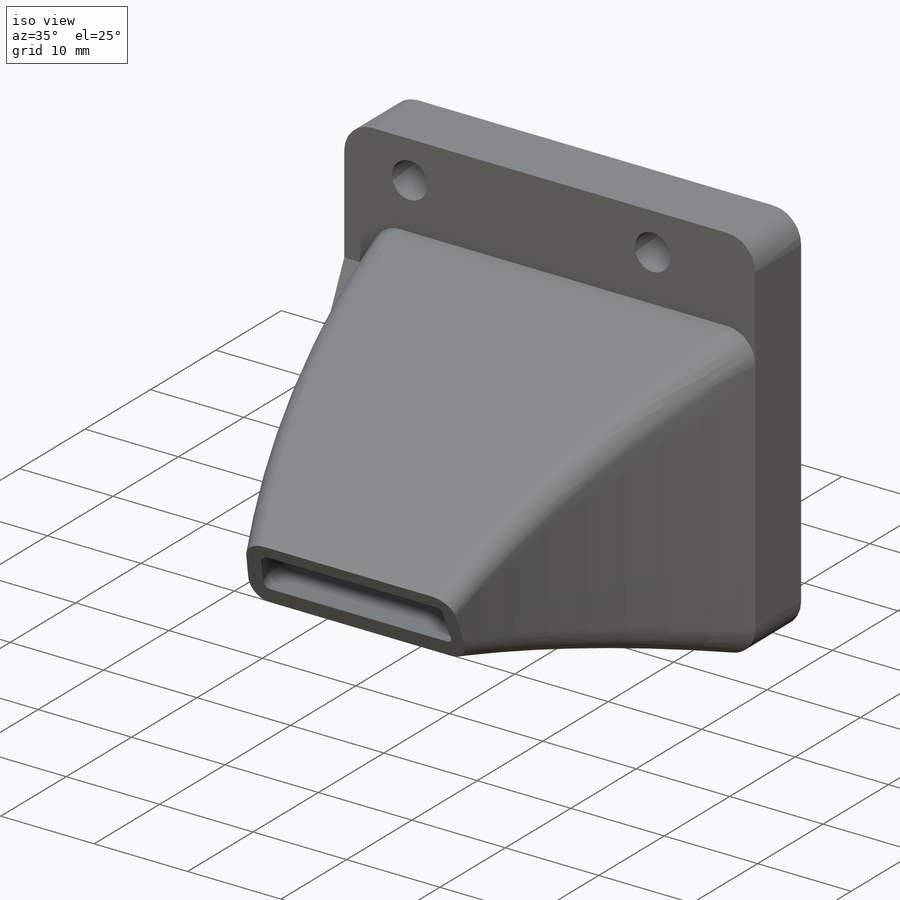
[diagram: iso view]
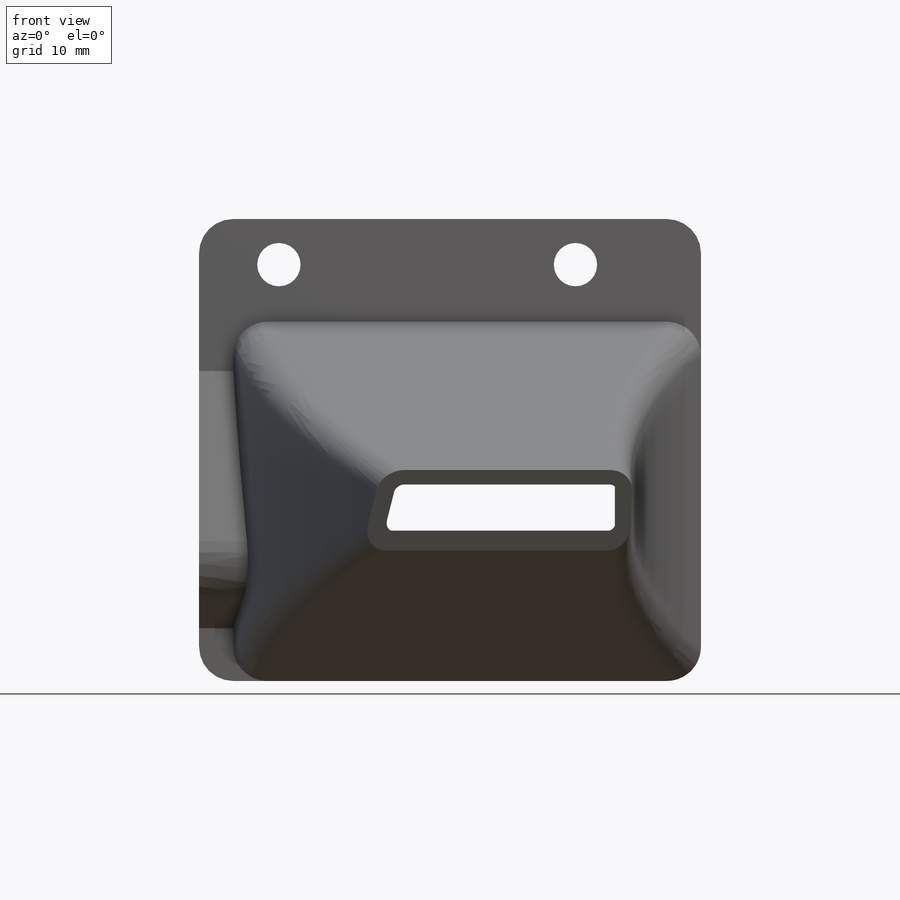
[diagram: front view]
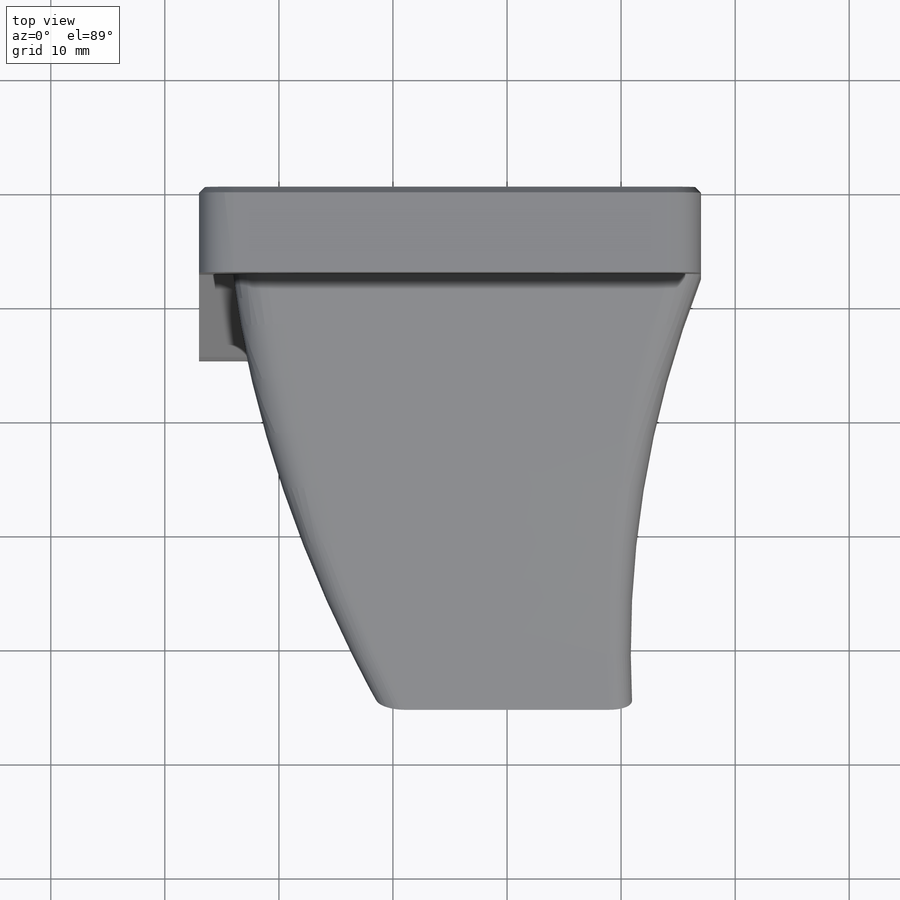
[diagram: top view]
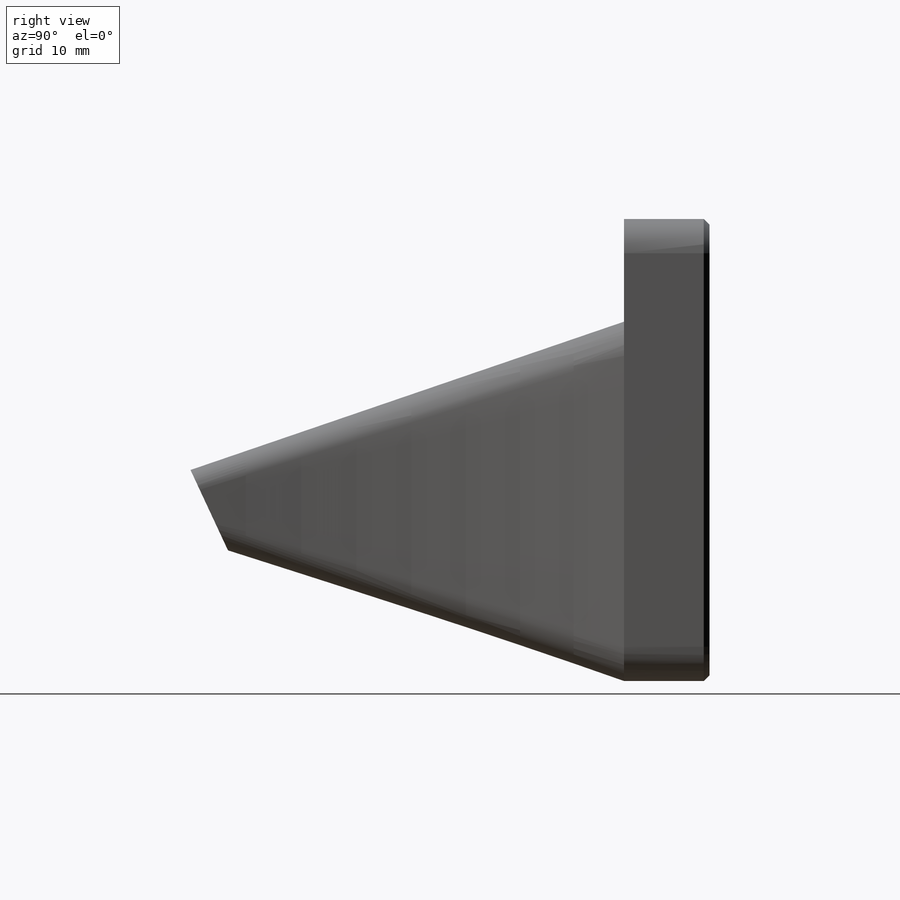
[diagram: right view]
SOLIDWORKS PART (.sldprt)
format: sldprt  version: not decoded by parser v0  size: 491,008 bytes
history: native  units: mm
features: sketch x10, cut_extrude x3, extrude x2, plane x2, material x1, hole x1, fillet x1, chamfer x1 (+11 scaffold rows collapsed)
feature tree (32):
  scaffold x11  (default folders/planes/origin — collapsed)
  material  "Material <not specified>"
  sketch  "Sketch1"  dims[c1.D1=5.2mm c1.D2=3.0mm c1.D15=2.0mm c1.D20=10.0mm c1.D21=2.0mm c1.D22=4.0mm c1.D23=5.0mm c1.D5=4.0mm c1.D14=5.2mm c2.D15=10.0mm c2.D16=2.0mm c2.D18=2.0mm c2.D19=2.0mm c2.D20=2.0mm c2.D2=~41.666699mm c2.D3=26.0mm c2.D4=7.0mm c2.D5=10.0mm c2.D6=32.0mm c2.D7=4.0mm c2.D8=4.0mm c2.D9=4.0mm c2.D10=4.0mm c2.D11=4.0mm c2.D12=4.5mm c2.D13=8.0mm c2.D14=6.0mm c3.D16=2.0mm c3.D17=3.5mm c3.D18=2.0mm c3.D19=8.0mm c3.D8=3.0mm c3.D5=2.0mm c3.D9=3.0mm c3.D10=7.0mm c3.D4=20.0mm c4.D8=10.4mm]
  extrude  "Boss-Extrude1"  Depth=7.5mm
  sketch  "Sketch3"  dims[c1.D7=3.0mm c1.D9=4.0mm c1.D1=7.5mm c2.D1=25.0deg c2.D2=20.0mm c2.D3=4.2mm c2.D4=9.5mm c2.D5=6.4mm c2.D6=3.0mm c2.D8=9.0mm c3.D2=21.0mm c3.D6=8.8mm]
  extrude  "Boss-Extrude2"  [1 undecoded]
  hole  "CSK for M3 Flat Head Machine Screw1"  Diameter=3.8mm Depth=14.816574mm
  sketch  "Sketch8"
  sketch  "Sketch7"  dims[hole-wizard template sketch: 54 standard entries collapsed; hole parameters kept: c17.Thru Hole Dia.=3.8mm c17.Thru Hole Depth=~14.816574mm c17.Near C'Sink Dia.=7.0mm c17.D4=~3.666174mm c17.Near C'Sink Angle=90.0deg]
  plane  "Plane1"  Offset=38mm
  sketch  "Sketch5"  dims[D1=2.0mm D2=17.0mm D3=22.0mm D4=18.0mm D5=6.0mm]
  sketch  "Sketch6"  dims[c1.D1=3.0mm c1.D2=34.0mm c1.D3=34.0mm c1.D4=30.0mm c2.D3=1.4mm c2.D2=2.0mm]
  fillet  "Fillet1"  Radius=3mm
  sketch  "Sketch4"  dims[c1.D1=3.0mm c1.D2=9.5mm c1.D3=~10.222159mm c1.D4=~10.222159mm c2.D3=8.5mm c2.D4=4.0mm]
  cut_extrude  "Cut-Extrude1"  Depth=4.5mm
  chamfer  "Chamfer1"  Distance=0.5mm Angle=45deg
  plane  "Plane2"
  sketch  "Sketch9"  dims[c1.D1=100.0mm c2.D1=1.4mm]
  sketch  "Sketch10"  dims[c1.D1=~11.089153mm c2.D1=25.0deg]
  cut_extrude  "Cut-Extrude2"  [1 undecoded]
  sketch  "Sketch11"
  cut_extrude  "Cut-Extrude3"  [1 undecoded]
decode coverage: 13 of 18 modeling features carry decoded parameters
note: ~ marks probable driven/reference dimensions
note: 3 parameter values undecoded
summary: no parameter record found for 3 features
note: suppression state not decoded; provenance and decode notes live in map.json
